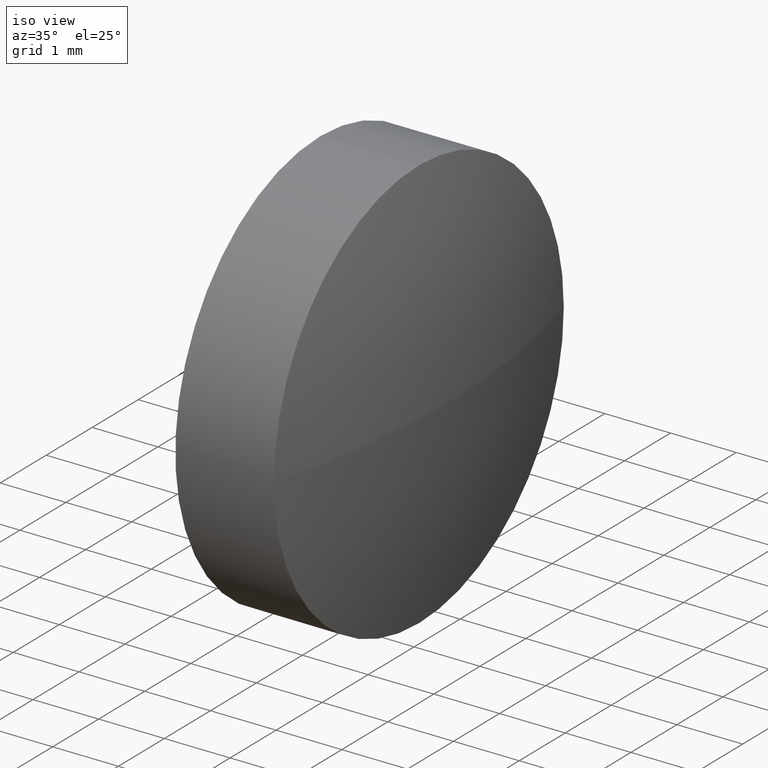
[diagram: clean part render]
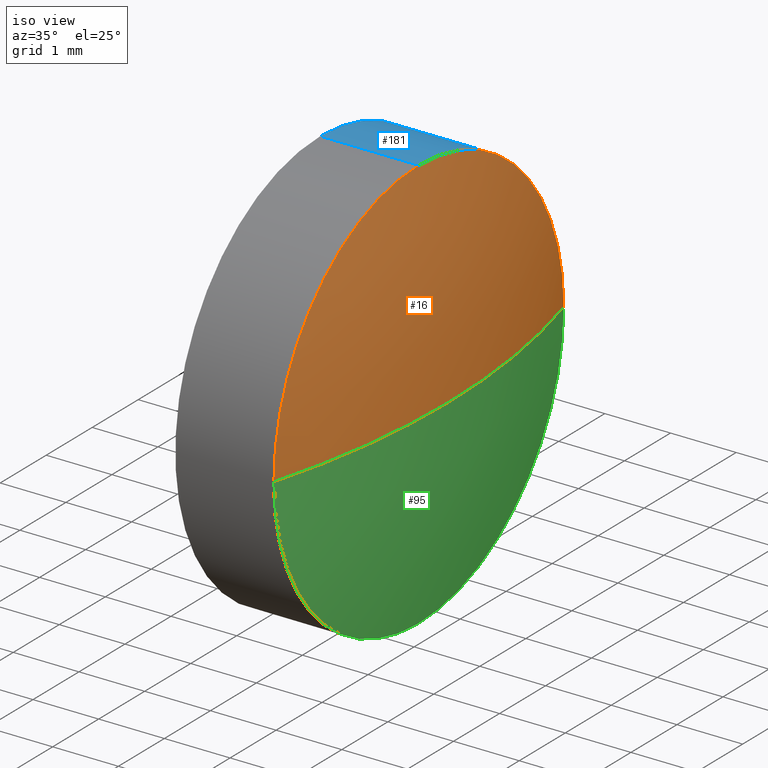
[diagram: same view with three faces highlighted in distinct colors, each labeled with its STEP entity id]
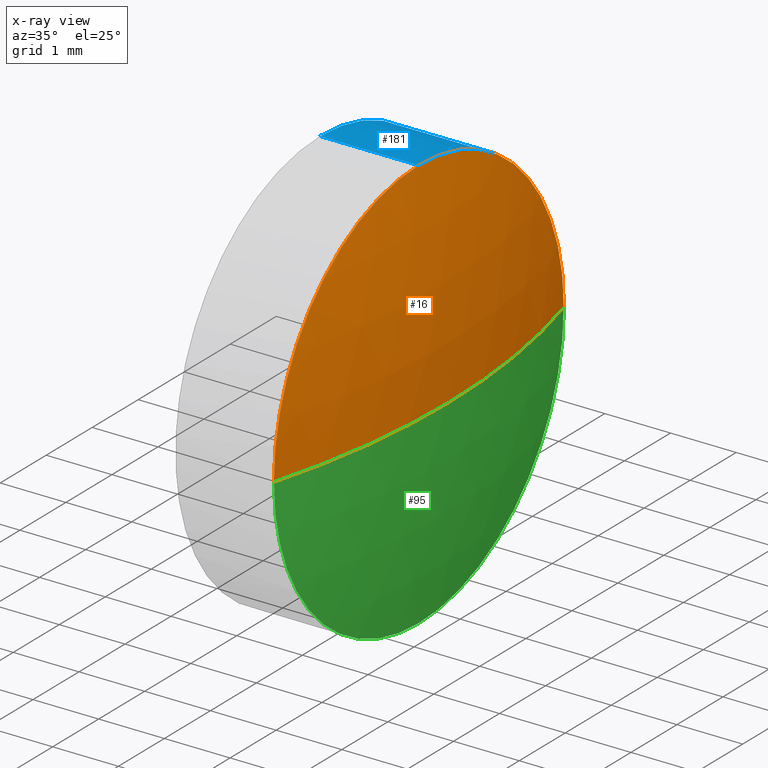
[diagram: x-ray of the same camera — body ghosted, the three highlighted faces saturated]
A machine part, iso view with three faces highlighted in distinct colors.
The next image is the same camera in x-ray (body ghosted, the three faces saturated) — at least one of them is partly hidden behind the body in this view.
Their STEP definitions:

[orange] entity #16 — the highlighted spherical surface has radius 11.4956 mm.
#5 = CIRCLE ( 'NONE', #92, 3.150000000000013700 ) ;
#16 = ADVANCED_FACE ( 'NONE', ( #91 ), #38, .T. ) ;
#18 = VERTEX_POINT ( 'NONE', #179 ) ;
#22 = EDGE_LOOP ( 'NONE', ( #184, #119, #149, #157 ) ) ;
#25 = VERTEX_POINT ( 'NONE', #177 ) ;
#26 = EDGE_CURVE ( 'NONE', #25, #63, #170, .T. ) ;
#27 = CARTESIAN_POINT ( 'NONE',  ( 544.7631593781184200, 146.3616492016621700, 0.0000000000000000000 ) ) ;
#31 = CARTESIAN_POINT ( 'NONE',  ( 544.7631593781184200, 146.3616492016621700, 0.0000000000000000000 ) ) ;
#37 = EDGE_CURVE ( 'NONE', #78, #18, #54, .T. ) ;
#38 = SPHERICAL_SURFACE ( 'NONE', #64, 11.49556818181808300 ) ;
#45 = DIRECTION ( 'NONE',  ( 0.0000000000000000000, 0.0000000000000000000, 1.000000000000000000 ) ) ;
#47 = AXIS2_PLACEMENT_3D ( 'NONE', #127, #57, #100 ) ;
#54 = CIRCLE ( 'NONE', #116, 11.49556818181807200 ) ;
#57 = DIRECTION ( 'NONE',  ( -1.000000000000000000, -0.0000000000000000000, -0.0000000000000000000 ) ) ;
#63 = VERTEX_POINT ( 'NONE', #161 ) ;
#64 = AXIS2_PLACEMENT_3D ( 'NONE', #27, #134, #94 ) ;
#70 = DIRECTION ( 'NONE',  ( 0.0000000000000000000, 1.000000000000000000, 1.224646799147354200E-016 ) ) ;
#71 = DIRECTION ( 'NONE',  ( -0.0000000000000000000, 0.0000000000000000000, 1.000000000000000000 ) ) ;
#78 = VERTEX_POINT ( 'NONE', #152 ) ;
#85 = DIRECTION ( 'NONE',  ( 1.000000000000000000, 0.0000000000000000000, 0.0000000000000000000 ) ) ;
#86 = CARTESIAN_POINT ( 'NONE',  ( 544.7631593781184200, 146.3616492016621700, 0.0000000000000000000 ) ) ;
#88 = EDGE_CURVE ( 'NONE', #18, #25, #5, .T. ) ;
#91 = FACE_OUTER_BOUND ( 'NONE', #22, .T. ) ;
#92 = AXIS2_PLACEMENT_3D ( 'NONE', #166, #185, #45 ) ;
#94 = DIRECTION ( 'NONE',  ( 0.0000000000000000000, 1.000000000000000000, 0.0000000000000000000 ) ) ;
#100 = DIRECTION ( 'NONE',  ( 0.0000000000000000000, 0.0000000000000000000, 1.000000000000000000 ) ) ;
#116 = AXIS2_PLACEMENT_3D ( 'NONE', #86, #171, #70 ) ;
#119 = ORIENTED_EDGE ( 'NONE', *, *, #176, .T. ) ;
#127 = CARTESIAN_POINT ( 'NONE',  ( 555.8187275599364100, 146.3616492016622000, 0.0000000000000000000 ) ) ;
#134 = DIRECTION ( 'NONE',  ( -0.0000000000000000000, 0.0000000000000000000, -1.000000000000000000 ) ) ;
#142 = AXIS2_PLACEMENT_3D ( 'NONE', #31, #71, #85 ) ;
#143 = CIRCLE ( 'NONE', #142, 11.49556818181807200 ) ;
#149 = ORIENTED_EDGE ( 'NONE', *, *, #26, .F. ) ;
#152 = CARTESIAN_POINT ( 'NONE',  ( 556.2587275599364600, 146.3616492016621700, 0.0000000000000000000 ) ) ;
#157 = ORIENTED_EDGE ( 'NONE', *, *, #88, .F. ) ;
#161 = CARTESIAN_POINT ( 'NONE',  ( 555.8187275599364100, 149.5116492016622100, 0.0000000000000000000 ) ) ;
#166 = CARTESIAN_POINT ( 'NONE',  ( 555.8187275599364100, 146.3616492016622000, 0.0000000000000000000 ) ) ;
#170 = CIRCLE ( 'NONE', #47, 3.150000000000013700 ) ;
#171 = DIRECTION ( 'NONE',  ( 0.0000000000000000000, 1.224646799147353200E-016, -1.000000000000000000 ) ) ;
#176 = EDGE_CURVE ( 'NONE', #78, #63, #143, .T. ) ;
#177 = CARTESIAN_POINT ( 'NONE',  ( 555.8187275599364100, 146.3616492016622000, 3.150000000000013700 ) ) ;
#179 = CARTESIAN_POINT ( 'NONE',  ( 555.8187275599364100, 143.2116492016621700, -3.857637417314145400E-016 ) ) ;
#184 = ORIENTED_EDGE ( 'NONE', *, *, #37, .F. ) ;
#185 = DIRECTION ( 'NONE',  ( -1.000000000000000000, -0.0000000000000000000, -0.0000000000000000000 ) ) ;

[blue] entity #181 — the highlighted cylindrical surface (partial cylindrical patch) has radius 3.15 mm, axis along (-1, -0, -0).
#3 = VERTEX_POINT ( 'NONE', #67 ) ;
#6 = VERTEX_POINT ( 'NONE', #104 ) ;
#7 = CARTESIAN_POINT ( 'NONE',  ( 555.8187275599364100, 146.3616492016622000, -3.150000000000013700 ) ) ;
#15 = AXIS2_PLACEMENT_3D ( 'NONE', #125, #43, #168 ) ;
#17 = DIRECTION ( 'NONE',  ( -1.000000000000000000, -0.0000000000000000000, -0.0000000000000000000 ) ) ;
#19 = EDGE_CURVE ( 'NONE', #25, #3, #103, .T. ) ;
#23 = ORIENTED_EDGE ( 'NONE', *, *, #19, .F. ) ;
#24 = FACE_OUTER_BOUND ( 'NONE', #93, .T. ) ;
#25 = VERTEX_POINT ( 'NONE', #177 ) ;
#26 = EDGE_CURVE ( 'NONE', #25, #63, #170, .T. ) ;
#29 = CARTESIAN_POINT ( 'NONE',  ( 553.4580894711874600, 146.3616492016622000, -3.150000000000013700 ) ) ;
#35 = EDGE_CURVE ( 'NONE', #3, #6, #75, .T. ) ;
#39 = VERTEX_POINT ( 'NONE', #7 ) ;
#42 = DIRECTION ( 'NONE',  ( 0.0000000000000000000, 0.0000000000000000000, 1.000000000000000000 ) ) ;
#43 = DIRECTION ( 'NONE',  ( -1.000000000000000000, -0.0000000000000000000, -0.0000000000000000000 ) ) ;
#47 = AXIS2_PLACEMENT_3D ( 'NONE', #127, #57, #100 ) ;
#51 = LINE ( 'NONE', #29, #136 ) ;
#57 = DIRECTION ( 'NONE',  ( -1.000000000000000000, -0.0000000000000000000, -0.0000000000000000000 ) ) ;
#63 = VERTEX_POINT ( 'NONE', #161 ) ;
#67 = CARTESIAN_POINT ( 'NONE',  ( 554.3187275599364100, 146.3616492016622000, 3.150000000000013700 ) ) ;
#72 = DIRECTION ( 'NONE',  ( 0.0000000000000000000, 0.0000000000000000000, 1.000000000000000000 ) ) ;
#73 = AXIS2_PLACEMENT_3D ( 'NONE', #98, #17, #72 ) ;
#75 = CIRCLE ( 'NONE', #73, 3.150000000000013700 ) ;
#79 = CARTESIAN_POINT ( 'NONE',  ( 553.4580894711874600, 146.3616492016622000, 3.150000000000013700 ) ) ;
#93 = EDGE_LOOP ( 'NONE', ( #131, #115, #160, #23, #112 ) ) ;
#97 = DIRECTION ( 'NONE',  ( -1.000000000000000000, -0.0000000000000000000, -0.0000000000000000000 ) ) ;
#98 = CARTESIAN_POINT ( 'NONE',  ( 554.3187275599364100, 146.3616492016622000, 0.0000000000000000000 ) ) ;
#99 = VECTOR ( 'NONE', #162, 1000.000000000000000 ) ;
#100 = DIRECTION ( 'NONE',  ( 0.0000000000000000000, 0.0000000000000000000, 1.000000000000000000 ) ) ;
#103 = LINE ( 'NONE', #79, #99 ) ;
#104 = CARTESIAN_POINT ( 'NONE',  ( 554.3187275599364100, 146.3616492016622000, -3.150000000000013700 ) ) ;
#105 = EDGE_CURVE ( 'NONE', #63, #39, #158, .T. ) ;
#112 = ORIENTED_EDGE ( 'NONE', *, *, #26, .T. ) ;
#115 = ORIENTED_EDGE ( 'NONE', *, *, #163, .T. ) ;
#125 = CARTESIAN_POINT ( 'NONE',  ( 553.4580894711874600, 146.3616492016622000, 0.0000000000000000000 ) ) ;
#127 = CARTESIAN_POINT ( 'NONE',  ( 555.8187275599364100, 146.3616492016622000, 0.0000000000000000000 ) ) ;
#129 = AXIS2_PLACEMENT_3D ( 'NONE', #154, #97, #42 ) ;
#131 = ORIENTED_EDGE ( 'NONE', *, *, #105, .T. ) ;
#136 = VECTOR ( 'NONE', #150, 1000.000000000000000 ) ;
#150 = DIRECTION ( 'NONE',  ( -1.000000000000000000, -0.0000000000000000000, -0.0000000000000000000 ) ) ;
#154 = CARTESIAN_POINT ( 'NONE',  ( 555.8187275599364100, 146.3616492016622000, 0.0000000000000000000 ) ) ;
#158 = CIRCLE ( 'NONE', #129, 3.150000000000013700 ) ;
#160 = ORIENTED_EDGE ( 'NONE', *, *, #35, .F. ) ;
#161 = CARTESIAN_POINT ( 'NONE',  ( 555.8187275599364100, 149.5116492016622100, 0.0000000000000000000 ) ) ;
#162 = DIRECTION ( 'NONE',  ( -1.000000000000000000, -0.0000000000000000000, -0.0000000000000000000 ) ) ;
#163 = EDGE_CURVE ( 'NONE', #39, #6, #51, .T. ) ;
#164 = CYLINDRICAL_SURFACE ( 'NONE', #15, 3.150000000000013700 ) ;
#168 = DIRECTION ( 'NONE',  ( 0.0000000000000000000, 0.0000000000000000000, 1.000000000000000000 ) ) ;
#170 = CIRCLE ( 'NONE', #47, 3.150000000000013700 ) ;
#177 = CARTESIAN_POINT ( 'NONE',  ( 555.8187275599364100, 146.3616492016622000, 3.150000000000013700 ) ) ;
#181 = ADVANCED_FACE ( 'NONE', ( #24 ), #164, .T. ) ;

[green] entity #95 — the highlighted spherical surface has radius 11.4956 mm.
#7 = CARTESIAN_POINT ( 'NONE',  ( 555.8187275599364100, 146.3616492016622000, -3.150000000000013700 ) ) ;
#11 = ORIENTED_EDGE ( 'NONE', *, *, #105, .F. ) ;
#18 = VERTEX_POINT ( 'NONE', #179 ) ;
#20 = ORIENTED_EDGE ( 'NONE', *, *, #37, .T. ) ;
#31 = CARTESIAN_POINT ( 'NONE',  ( 544.7631593781184200, 146.3616492016621700, 0.0000000000000000000 ) ) ;
#32 = EDGE_LOOP ( 'NONE', ( #113, #20, #174, #11 ) ) ;
#37 = EDGE_CURVE ( 'NONE', #78, #18, #54, .T. ) ;
#39 = VERTEX_POINT ( 'NONE', #7 ) ;
#42 = DIRECTION ( 'NONE',  ( 0.0000000000000000000, 0.0000000000000000000, 1.000000000000000000 ) ) ;
#44 = DIRECTION ( 'NONE',  ( -0.0000000000000000000, 0.0000000000000000000, -1.000000000000000000 ) ) ;
#53 = SPHERICAL_SURFACE ( 'NONE', #135, 11.49556818181808300 ) ;
#54 = CIRCLE ( 'NONE', #116, 11.49556818181807200 ) ;
#63 = VERTEX_POINT ( 'NONE', #161 ) ;
#68 = EDGE_CURVE ( 'NONE', #39, #18, #117, .T. ) ;
#70 = DIRECTION ( 'NONE',  ( 0.0000000000000000000, 1.000000000000000000, 1.224646799147354200E-016 ) ) ;
#71 = DIRECTION ( 'NONE',  ( -0.0000000000000000000, 0.0000000000000000000, 1.000000000000000000 ) ) ;
#78 = VERTEX_POINT ( 'NONE', #152 ) ;
#80 = AXIS2_PLACEMENT_3D ( 'NONE', #84, #96, #109 ) ;
#82 = CARTESIAN_POINT ( 'NONE',  ( 544.7631593781184200, 146.3616492016621700, 0.0000000000000000000 ) ) ;
#84 = CARTESIAN_POINT ( 'NONE',  ( 555.8187275599364100, 146.3616492016622000, 0.0000000000000000000 ) ) ;
#85 = DIRECTION ( 'NONE',  ( 1.000000000000000000, 0.0000000000000000000, 0.0000000000000000000 ) ) ;
#86 = CARTESIAN_POINT ( 'NONE',  ( 544.7631593781184200, 146.3616492016621700, 0.0000000000000000000 ) ) ;
#95 = ADVANCED_FACE ( 'NONE', ( #123 ), #53, .T. ) ;
#96 = DIRECTION ( 'NONE',  ( -1.000000000000000000, -0.0000000000000000000, -0.0000000000000000000 ) ) ;
#97 = DIRECTION ( 'NONE',  ( -1.000000000000000000, -0.0000000000000000000, -0.0000000000000000000 ) ) ;
#105 = EDGE_CURVE ( 'NONE', #63, #39, #158, .T. ) ;
#109 = DIRECTION ( 'NONE',  ( 0.0000000000000000000, 0.0000000000000000000, 1.000000000000000000 ) ) ;
#113 = ORIENTED_EDGE ( 'NONE', *, *, #176, .F. ) ;
#116 = AXIS2_PLACEMENT_3D ( 'NONE', #86, #171, #70 ) ;
#117 = CIRCLE ( 'NONE', #80, 3.150000000000013700 ) ;
#123 = FACE_OUTER_BOUND ( 'NONE', #32, .T. ) ;
#129 = AXIS2_PLACEMENT_3D ( 'NONE', #154, #97, #42 ) ;
#135 = AXIS2_PLACEMENT_3D ( 'NONE', #82, #44, #182 ) ;
#142 = AXIS2_PLACEMENT_3D ( 'NONE', #31, #71, #85 ) ;
#143 = CIRCLE ( 'NONE', #142, 11.49556818181807200 ) ;
#152 = CARTESIAN_POINT ( 'NONE',  ( 556.2587275599364600, 146.3616492016621700, 0.0000000000000000000 ) ) ;
#154 = CARTESIAN_POINT ( 'NONE',  ( 555.8187275599364100, 146.3616492016622000, 0.0000000000000000000 ) ) ;
#158 = CIRCLE ( 'NONE', #129, 3.150000000000013700 ) ;
#161 = CARTESIAN_POINT ( 'NONE',  ( 555.8187275599364100, 149.5116492016622100, 0.0000000000000000000 ) ) ;
#171 = DIRECTION ( 'NONE',  ( 0.0000000000000000000, 1.224646799147353200E-016, -1.000000000000000000 ) ) ;
#174 = ORIENTED_EDGE ( 'NONE', *, *, #68, .F. ) ;
#176 = EDGE_CURVE ( 'NONE', #78, #63, #143, .T. ) ;
#179 = CARTESIAN_POINT ( 'NONE',  ( 555.8187275599364100, 143.2116492016621700, -3.857637417314145400E-016 ) ) ;
#182 = DIRECTION ( 'NONE',  ( 0.0000000000000000000, 1.000000000000000000, 0.0000000000000000000 ) ) ;